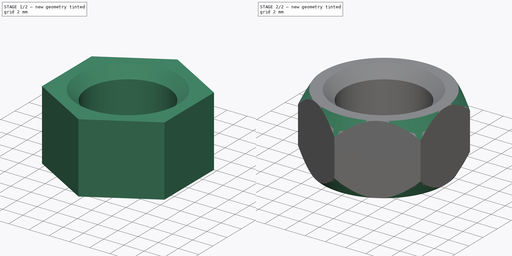
[diagram: build sequence overview — one tinted view per stage of 2, left to right]
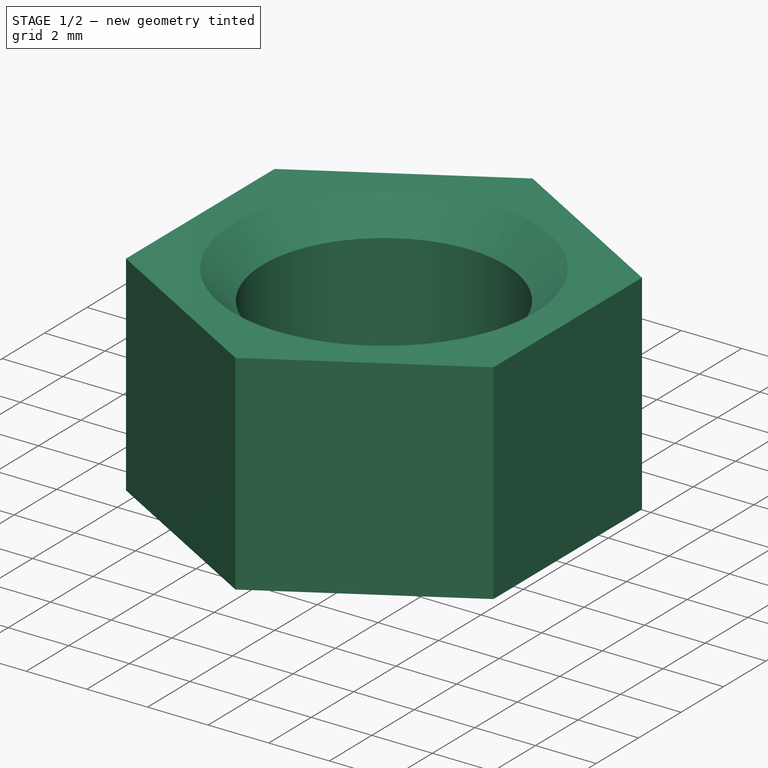
[diagram: stage 1 of 2 — iso view after this stage's code; geometry added in this stage tinted green]
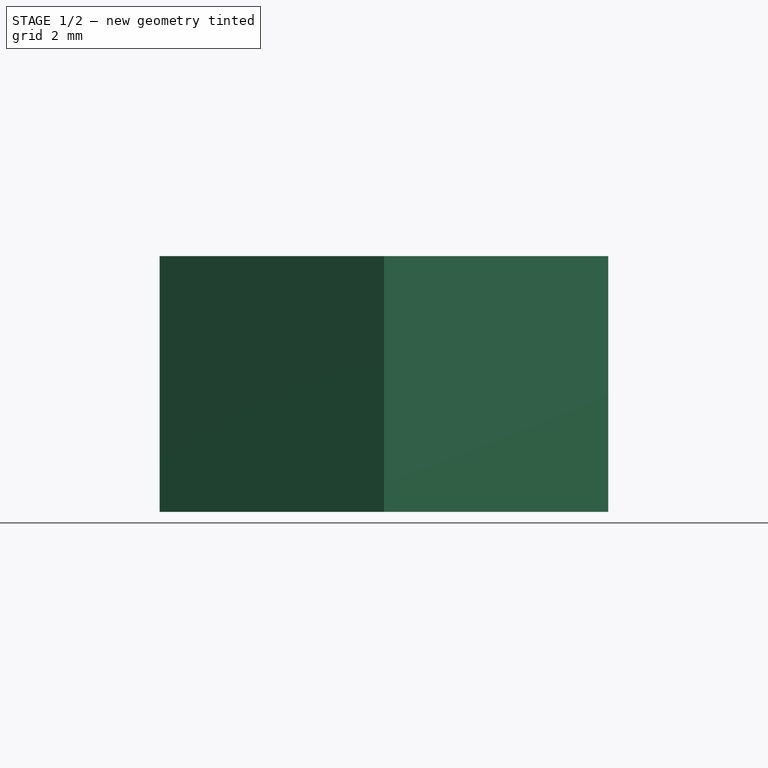
[diagram: stage 1 of 2 — front view after this stage's code; geometry added in this stage tinted green]
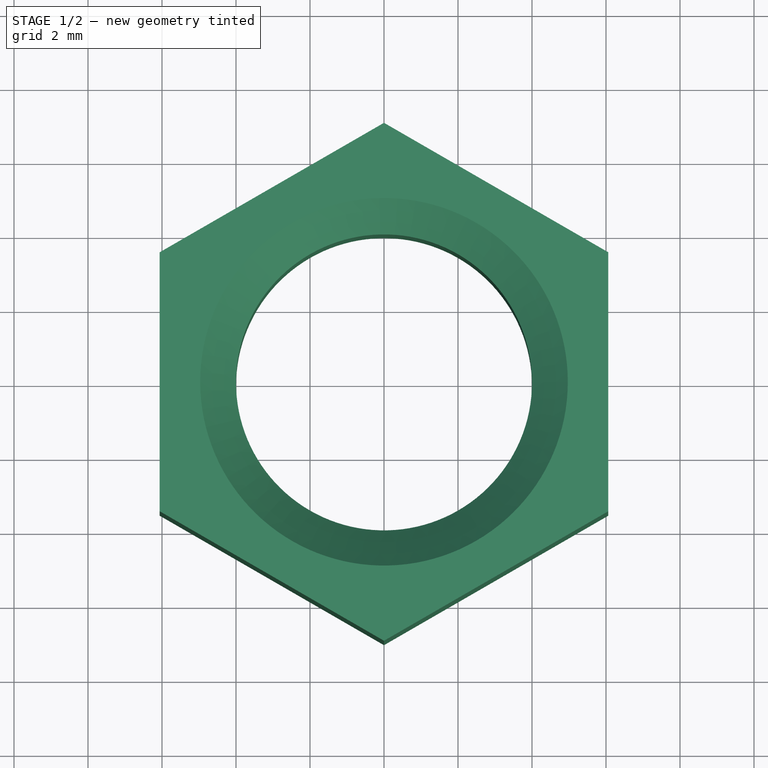
[diagram: stage 1 of 2 — top view after this stage's code; geometry added in this stage tinted green]
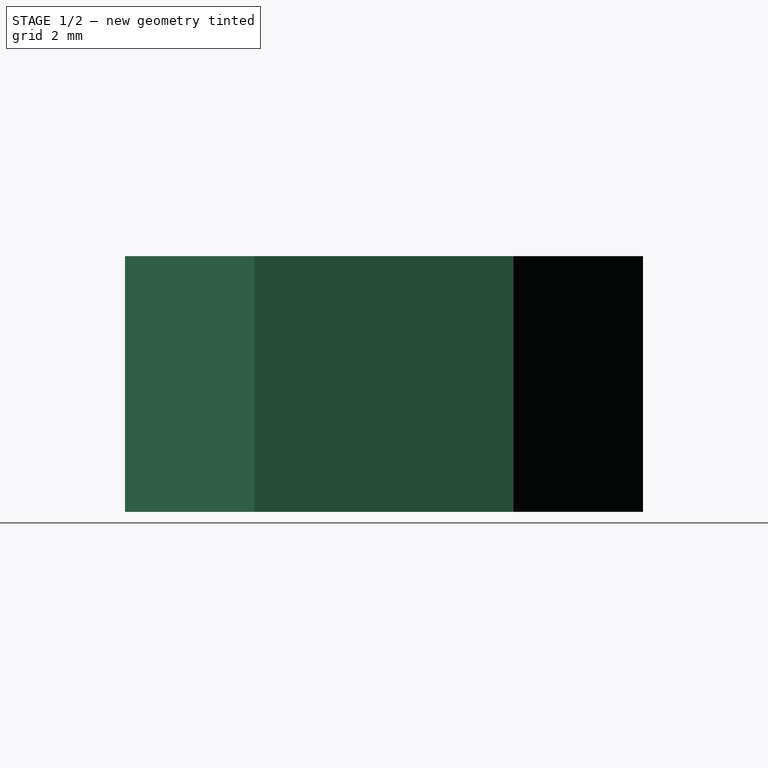
[diagram: stage 1 of 2 — right view after this stage's code; geometry added in this stage tinted green]
FCSTD DOCUMENT  (FreeCAD 0.21R33771 (Git))
Label: Fastener_HexNut
License: All rights reserved
LicenseURL: http://en.wikipedia.org/wiki/All_rights_reserved
objects: Sketcher::SketchObject×2, PartDesign::Chamfer×2, PartDesign::Pad×1, Spreadsheet::Sheet×1, PartDesign::Groove×1, PartDesign::Body×1
note: 11 computed .brp shape members not serialized (recipe doc carries the construction recipe); baked Part::Feature solids carry a one-line shape summary decoded from their .brp
EXTERNAL_REF file=../Master_of_Puppets.FCStd obj=Alternator
EXTERNAL_REF file=../Master_of_Puppets.FCStd obj=Hub

FEATURE [Sketcher::SketchObject] Sketch
  FullyConstrained = true
  MapMode = 5
  Support = -> [XY_Plane]
  expr: Constraints[19] = Spreadsheet.ExternalRadius
  expr: Constraints[21] = Spreadsheet.MajorRadius
  sketch-geometry (8):
    g0: LineSegment StartX=2e-16 StartY=7 StartZ=0 EndX=-6.06218 EndY=3.5 EndZ=0
    g1: LineSegment StartX=-6.06218 StartY=3.5 StartZ=0 EndX=-6.06218 EndY=-3.5 EndZ=0
    g2: LineSegment StartX=-6.06218 StartY=-3.5 StartZ=0 EndX=0 EndY=-7 EndZ=0
    g3: LineSegment StartX=2e-16 StartY=-7 StartZ=0 EndX=6.06218 EndY=-3.5 EndZ=0
    g4: LineSegment StartX=6.06218 StartY=-3.5 StartZ=0 EndX=6.06218 EndY=3.5 EndZ=0
    g5: LineSegment StartX=6.06218 StartY=3.5 StartZ=0 EndX=0 EndY=7 EndZ=0
    g6: Circle CenterX=0 CenterY=0 CenterZ=0 NormalX=0 NormalY=0 NormalZ=1 AngleXU=0 Radius=7
    g7: Circle CenterX=0 CenterY=0 CenterZ=0 NormalX=0 NormalY=0 NormalZ=1 AngleXU=0 Radius=4
  constraints (18):
    c: Coincident(g0,g1)
    c: Coincident(g1,g2)
    c: Coincident(g2,g3)
    c: Coincident(g3,g4)
    c: Coincident(g4,g5)
    c: Equal(g0, g1-g5) x5
    c: PointOnObject(g0,g6)
    c: PointOnObject(g1,g6)
    c: PointOnObject(g2,g6)
    c: PointOnObject(g3,g6)
    c: PointOnObject(g4,g6)
    c: PointOnObject(g5,g6)
    c: Coincident(g6,g-1)
    c: PointOnObject(g5,g-2)
    c: Symmetric(g0,g2,g-1)
    c: DistanceY(g-1,g0) = 7
    c: Coincident(g7,g-1)
    c: Radius(g7) = 4
FEATURE [PartDesign::Pad] Pad
  Direction = (0,0,1)
  Length = 6.91
  Length2 = 100
  Profile = -> Sketch
  Type = 0
  expr: Length = Spreadsheet.Height
FEATURE [Sketcher::SketchObject] Sketch001
  FullyConstrained = true
  MapMode = 5
  Placement = pos=(0,0,0) rot=(0.57735,0.57735,0.57735;2.0944rad)
  Support = -> [YZ_Plane]
  expr: Constraints[0] = Spreadsheet.TriangleWidth
  expr: Constraints[14] = Spreadsheet.B15
  expr: Constraints[15] = Spreadsheet.TriangleDistance
  expr: Constraints[16] = Spreadsheet.TriangleWidth
  expr: Constraints[17] = Spreadsheet.TriangleDistance
  expr: Constraints[6] = Spreadsheet.B15
  expr: Constraints[7] = Spreadsheet.Height
  sketch-geometry (6):
    g0: LineSegment StartX=-6.06218 StartY=6.91 StartZ=0 EndX=-7 EndY=6.91 EndZ=0
    g1: LineSegment StartX=-7 StartY=5.28564 StartZ=0 EndX=-7 EndY=6.91 EndZ=0
    g2: LineSegment StartX=-6.06218 StartY=6.91 StartZ=0 EndX=-7 EndY=5.28564 EndZ=0
    g3: LineSegment StartX=-7 StartY=1.62436 StartZ=0 EndX=-7 EndY=0 EndZ=0
    g4: LineSegment StartX=-7 StartY=0 StartZ=0 EndX=-6.06218 EndY=0 EndZ=0
    g5: LineSegment StartX=-7 StartY=1.62436 StartZ=0 EndX=-6.06218 EndY=0 EndZ=0
  constraints (18):
    c: DistanceX(g0,g0) = 0.937822
    c: Coincident(g0,g1)
    c: Horizontal(g0)
    c: Vertical(g1)
    c: Coincident(g2,g0)
    c: Coincident(g2,g1)
    c: Angle(g0,g2) = 1.0472
    c: DistanceY(g-1,g0) = 6.91
    c: PointOnObject(g3,g-1)
    c: Vertical(g3)
    c: Coincident(g4,g3)
    c: PointOnObject(g4,g-1)
    c: Coincident(g5,g3)
    c: Coincident(g5,g4)
    c: Angle(g5,g4) = 1.0472
    c: DistanceX(g4,g-1) = 6.06218
    c: DistanceX(g4,g4) = 0.937822
    c: DistanceX(g0,g-1) = 6.06218
FEATURE [Spreadsheet::Sheet] Spreadsheet
  cells = A1='Variant; B1='Radius; A2='HolesRadius; B2(Radius)==.B3; A3='HolesRadius; B3==Master_of_Puppets#Alternator.HolesRadius; A4='HubHolesRadius; B4==Master_of_Puppets#Hub.HubHolesRadius; A5='StatorMold; B5==Master_of_Puppets#Alternator.StatorMoldBoltDiameter / 2; A6='CoilWinder; B6==Master_of_Puppets#Alternator.CoilWinderCenterRodRadius; A8='Inputs; A9='HexNutThickness; B9(HexNutThickness)==1.64 * Radius + 0.35; A10='Parameters; A11='MajorDiameter; B11(MajorDiameter)==Radius * 2; A12='ExternalDiameter; B12(ExternalDiameter)==Radius * 3.5; A13='Height; B13(Height)==HexNutThickness; A14='Calculations; B14='See Also; C14='https://calcresource.com/geom-hexagon.html; A15='CentralAngle; B15(CentralAngle)==360 / 6; A16='Theta; B16(Theta)==CentralAngle / 2; A17='ExternalRadius; B17(ExternalRadius)==ExternalDiameter / 2; A18='Inradius; B18(Inradius)==cos(Theta) * ExternalRadius; A19='TriangleWidth; B19(TriangleWidth)==ExternalRadius - Inradius; A20='TriangleDistance; B20(TriangleDistance)==ExternalRadius - TriangleWidth; A21='MajorRadius; B21(MajorRadius)==MajorDiameter / 2; A22='Chamfer; B22(Chamfer)==HexNutThickness * 0.14
  expr: .cells.Bind.B2.B2 = tuple(.cells; <<B>> + str(hiddenref(Body.Variant) + 3); <<B>> + str(hiddenref(Body.Variant) + 3))
FEATURE [PartDesign::Chamfer] Chamfer  label="TopChamfer"
  Angle = 45
  Base = -> Pad [Edge21]
  BaseFeature = -> Pad
  ChamferType = 0
  FlipDirection = false
  Size = 0.9674
  Size2 = 1
  SupportTransform = false
  UseAllEdges = false
  expr: Size = Spreadsheet.Chamfer
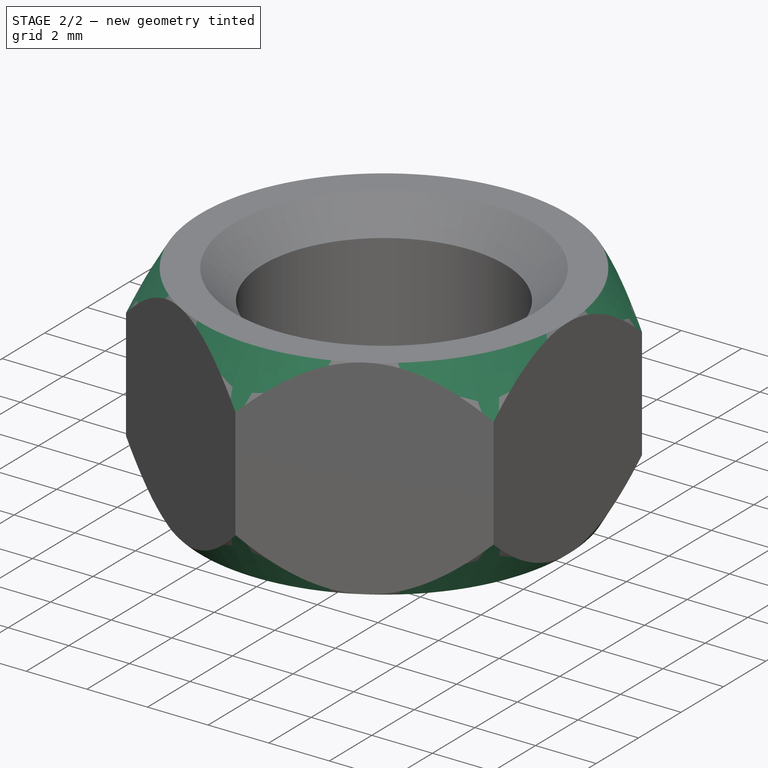
[diagram: stage 2 of 2 — iso view after this stage's code; geometry added in this stage tinted green]
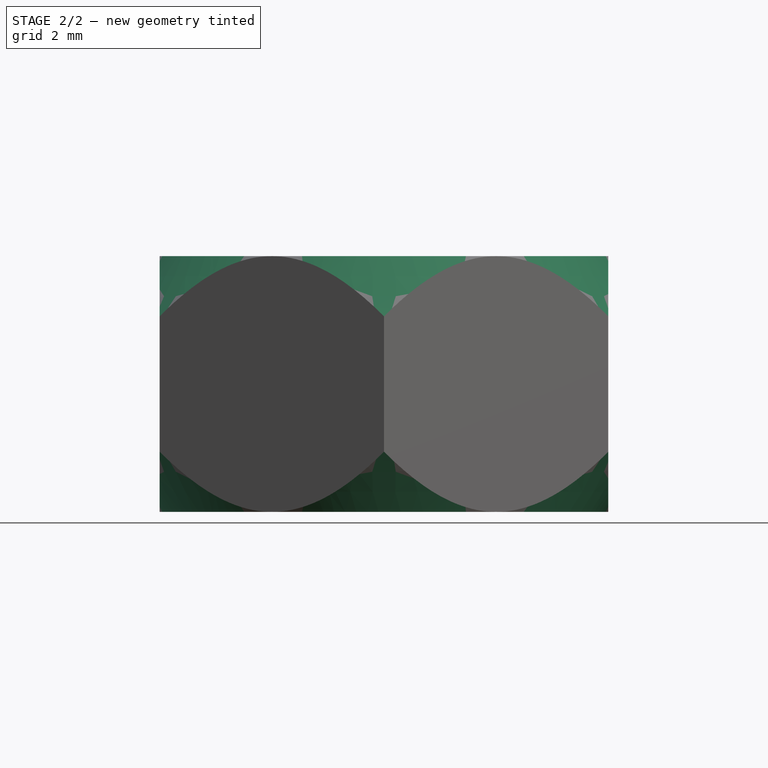
[diagram: stage 2 of 2 — front view after this stage's code; geometry added in this stage tinted green]
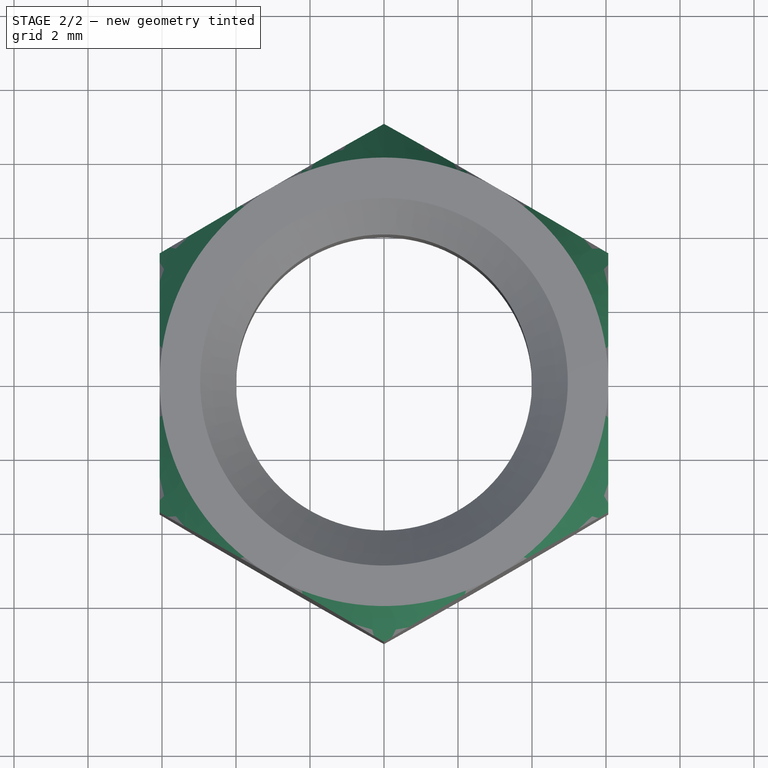
[diagram: stage 2 of 2 — top view after this stage's code; geometry added in this stage tinted green]
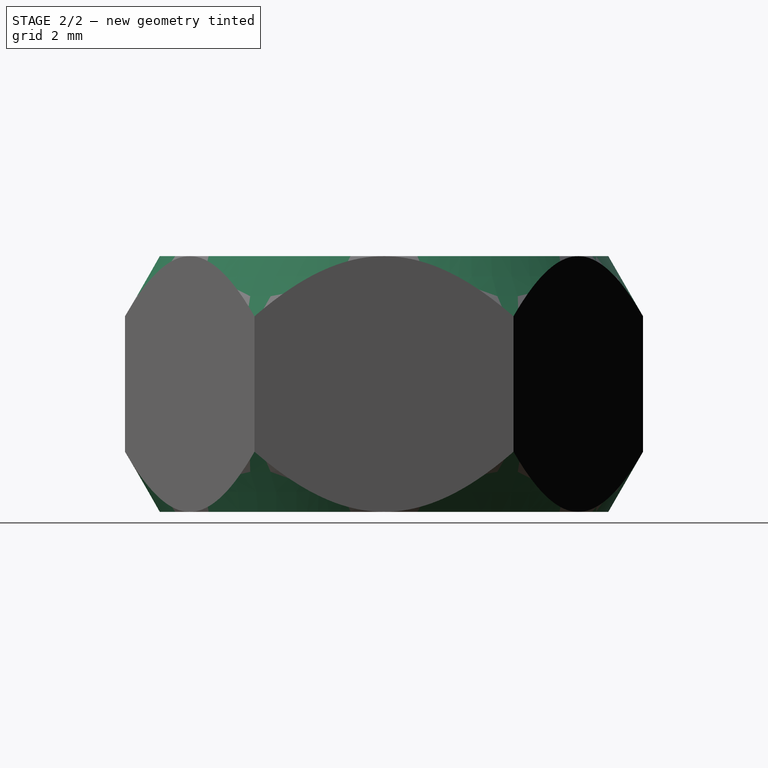
[diagram: stage 2 of 2 — right view after this stage's code; geometry added in this stage tinted green]
FEATURE [PartDesign::Chamfer] Chamfer001  label="BottomChamfer"
  Angle = 45
  Base = -> Chamfer [Edge3]
  BaseFeature = -> Chamfer
  ChamferType = 0
  FlipDirection = false
  Size = 0.9674
  Size2 = 1
  SupportTransform = false
  UseAllEdges = false
  expr: Size = Spreadsheet.Chamfer
FEATURE [PartDesign::Groove] Groove
  Angle = 360
  Axis = (-3e-16,3e-16,1)
  Base = (0,0,0)
  BaseFeature = -> Chamfer001
  Midplane = true
  Profile = -> Sketch001
  ReferenceAxis = -> Z_Axis
  Reversed = true
FEATURE [PartDesign::Body] Body  label="Fastener_HexNut"
  Group = -> [Sketch,Pad,Chamfer,Chamfer001,Sketch001,Groove]
  Origin = -> Origin
  Tip = -> Groove
  Variant = 0
  expr: .Variant.Enum = Spreadsheet.cells[<<A3:|>>]
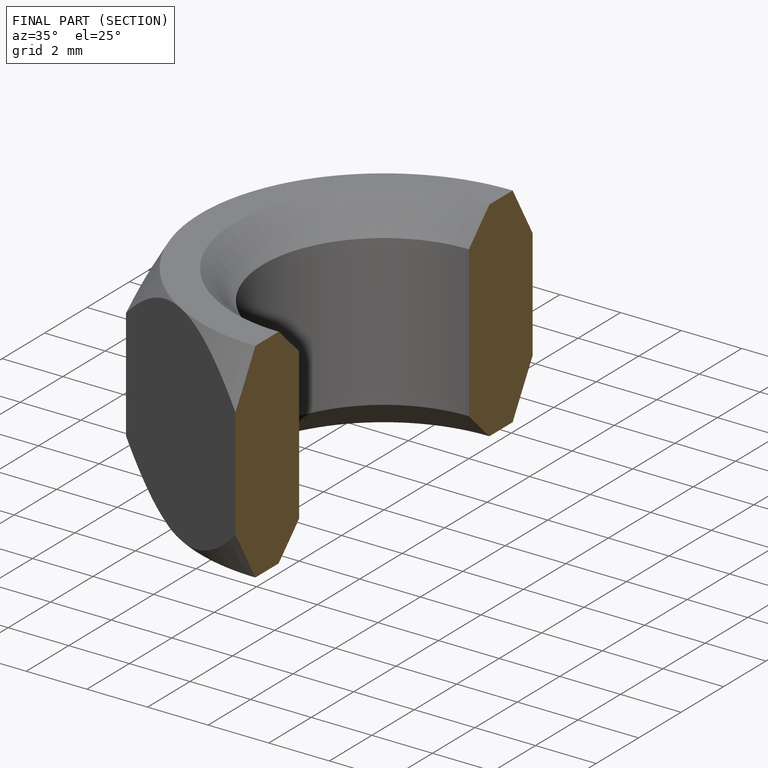
[diagram: finished part — half-section view (interior)]
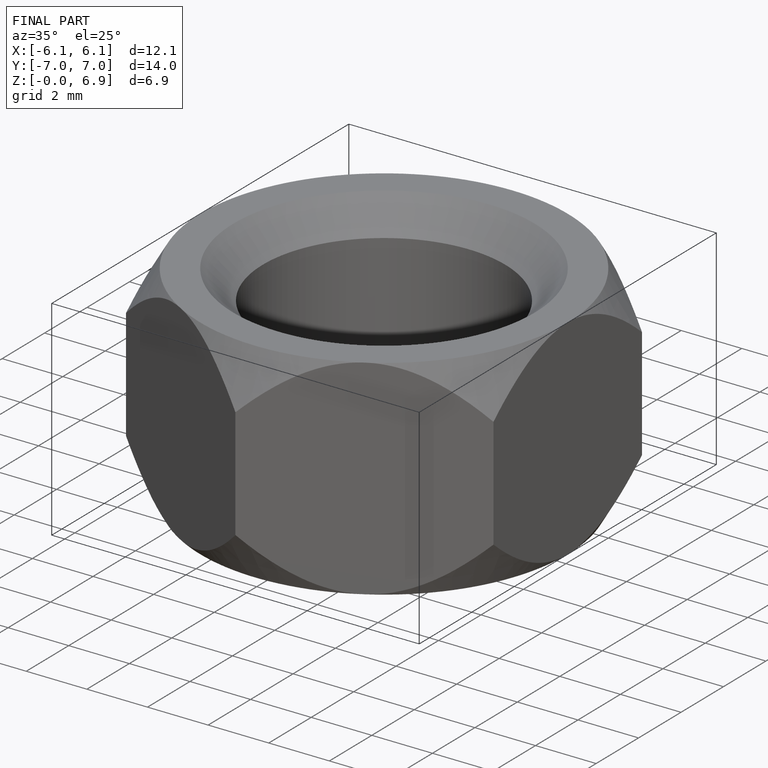
[diagram: finished part — iso view with bounding-box wireframe]
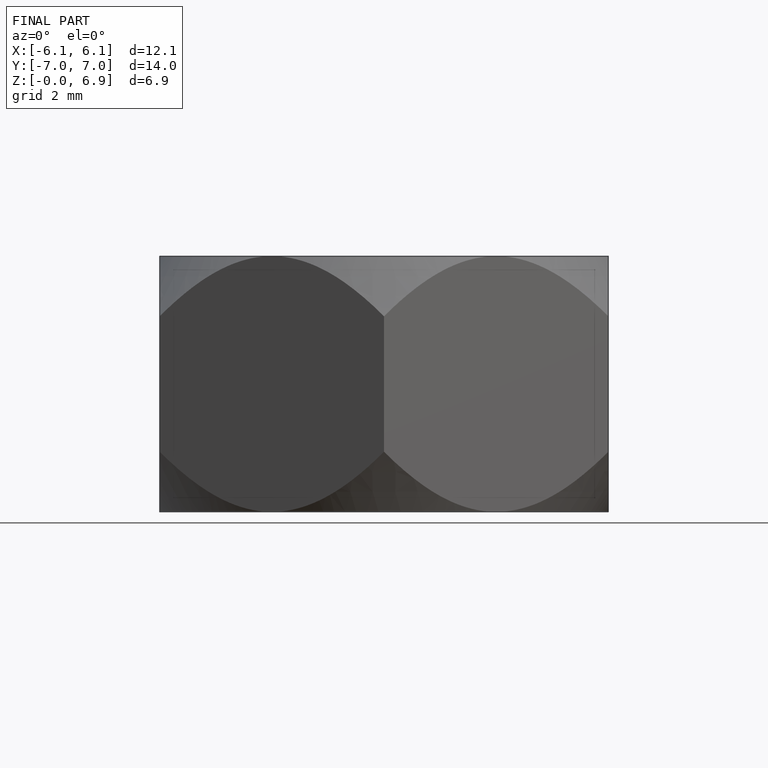
[diagram: finished part — front view with bounding-box wireframe]
